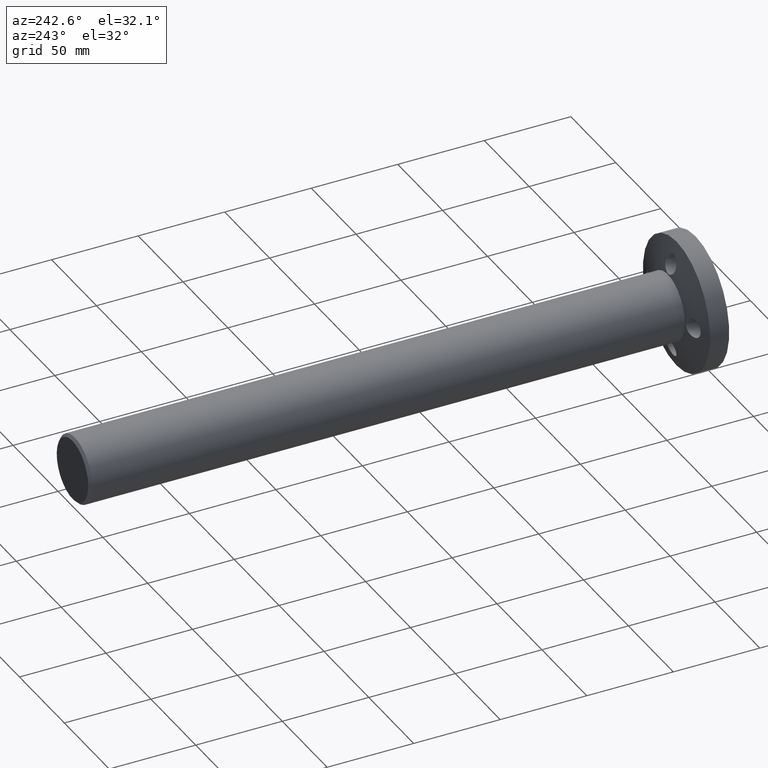
[diagram: clean part render]
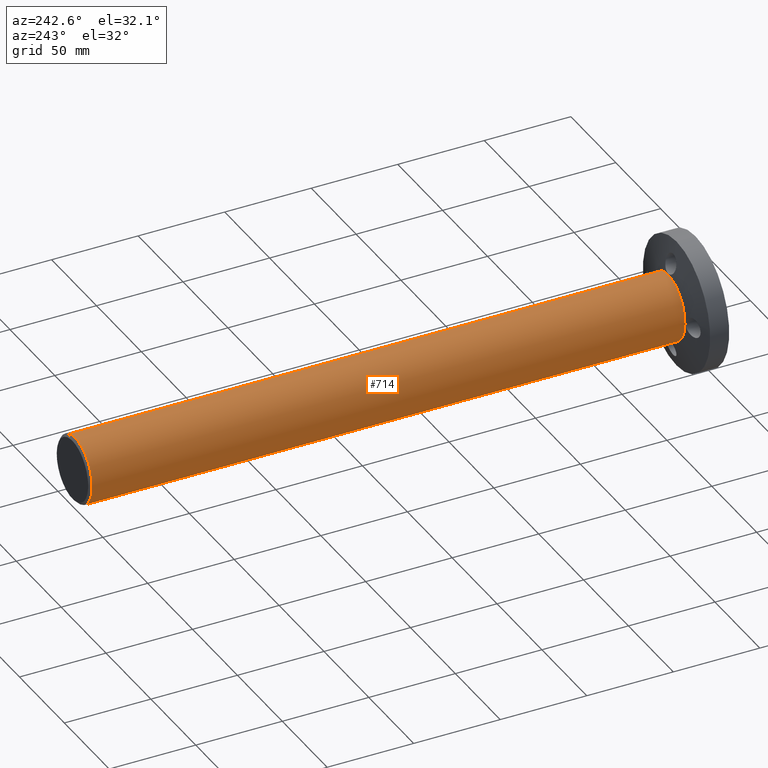
[diagram: same view with one face highlighted and labeled with its STEP entity id]
A machine part, auxiliary view. The second image highlights one B-rep face of the part: STEP entity #714.
In plain terms, the highlighted cylindrical surface (partial cylindrical patch) has radius 19.05 mm, axis along (0, -1, 0).
Its self-contained STEP definition (entity closure, byte-faithful):
#11 = VERTEX_POINT ( 'NONE', #961 ) ;
#51 = DIRECTION ( 'NONE',  ( 0.3125718034779135800, 0.0000000000000000000, 0.9498941349806117000 ) ) ;
#69 = DIRECTION ( 'NONE',  ( 0.0000000000000000000, -1.000000000000000000, 0.0000000000000000000 ) ) ;
#70 = EDGE_CURVE ( 'NONE', #1344, #11, #323, .T. ) ;
#323 = CIRCLE ( 'NONE', #1493, 19.05000000000004300 ) ;
#348 = CARTESIAN_POINT ( 'NONE',  ( -46.05816251671768000, 414.0271988641451300, -3.330357665184100500 ) ) ;
#357 = CARTESIAN_POINT ( 'NONE',  ( -40.10366966046341700, 414.0271988641451300, 14.76512560619659600 ) ) ;
#372 = AXIS2_PLACEMENT_3D ( 'NONE', #348, #749, #476 ) ;
#408 = DIRECTION ( 'NONE',  ( 0.0000000000000000000, -1.000000000000000000, 0.0000000000000000000 ) ) ;
#424 = EDGE_CURVE ( 'NONE', #1211, #11, #834, .T. ) ;
#476 = DIRECTION ( 'NONE',  ( 0.3125718034779135200, 0.0000000000000000000, 0.9498941349806117000 ) ) ;
#485 = ORIENTED_EDGE ( 'NONE', *, *, #1470, .F. ) ;
#501 = DIRECTION ( 'NONE',  ( 0.3125718034779135800, 0.0000000000000000000, 0.9498941349806117000 ) ) ;
#531 = ORIENTED_EDGE ( 'NONE', *, *, #70, .F. ) ;
#617 = ORIENTED_EDGE ( 'NONE', *, *, #705, .T. ) ;
#705 = EDGE_CURVE ( 'NONE', #813, #1211, #897, .T. ) ;
#714 = ADVANCED_FACE ( 'NONE', ( #986 ), #940, .T. ) ;
#749 = DIRECTION ( 'NONE',  ( 0.0000000000000000000, -1.000000000000000000, 0.0000000000000000000 ) ) ;
#767 = VECTOR ( 'NONE', #408, 1000.000000000000000 ) ;
#813 = VERTEX_POINT ( 'NONE', #357 ) ;
#834 = LINE ( 'NONE', #1348, #1418 ) ;
#848 = CARTESIAN_POINT ( 'NONE',  ( -46.05816251671768000, 61.00828633459433100, -3.330357665184100500 ) ) ;
#860 = ORIENTED_EDGE ( 'NONE', *, *, #424, .T. ) ;
#897 = CIRCLE ( 'NONE', #372, 19.05000000000004700 ) ;
#940 = CYLINDRICAL_SURFACE ( 'NONE', #1438, 19.05000000000004300 ) ;
#961 = CARTESIAN_POINT ( 'NONE',  ( -52.01265537297193500, 71.52719886414516300, -21.42584093656475000 ) ) ;
#986 = FACE_OUTER_BOUND ( 'NONE', #1174, .T. ) ;
#1042 = DIRECTION ( 'NONE',  ( 0.0000000000000000000, -1.000000000000000000, 0.0000000000000000000 ) ) ;
#1059 = CARTESIAN_POINT ( 'NONE',  ( -52.01265537297193500, 414.0271988641451300, -21.42584093656475400 ) ) ;
#1086 = DIRECTION ( 'NONE',  ( 0.0000000000000000000, -1.000000000000000000, 0.0000000000000000000 ) ) ;
#1174 = EDGE_LOOP ( 'NONE', ( #617, #860, #531, #485 ) ) ;
#1188 = CARTESIAN_POINT ( 'NONE',  ( -40.10366966046341700, 61.00828633459433100, 14.76512560619659300 ) ) ;
#1211 = VERTEX_POINT ( 'NONE', #1059 ) ;
#1334 = CARTESIAN_POINT ( 'NONE',  ( -40.10366966046341700, 71.52719886414516300, 14.76512560619659300 ) ) ;
#1344 = VERTEX_POINT ( 'NONE', #1334 ) ;
#1348 = CARTESIAN_POINT ( 'NONE',  ( -52.01265537297194900, 61.00828633459433100, -21.42584093656479600 ) ) ;
#1418 = VECTOR ( 'NONE', #1086, 1000.000000000000000 ) ;
#1438 = AXIS2_PLACEMENT_3D ( 'NONE', #848, #69, #51 ) ;
#1467 = LINE ( 'NONE', #1188, #767 ) ;
#1470 = EDGE_CURVE ( 'NONE', #813, #1344, #1467, .T. ) ;
#1493 = AXIS2_PLACEMENT_3D ( 'NONE', #1537, #1042, #501 ) ;
#1537 = CARTESIAN_POINT ( 'NONE',  ( -46.05816251671768000, 71.52719886414516300, -3.330357665184100500 ) ) ;